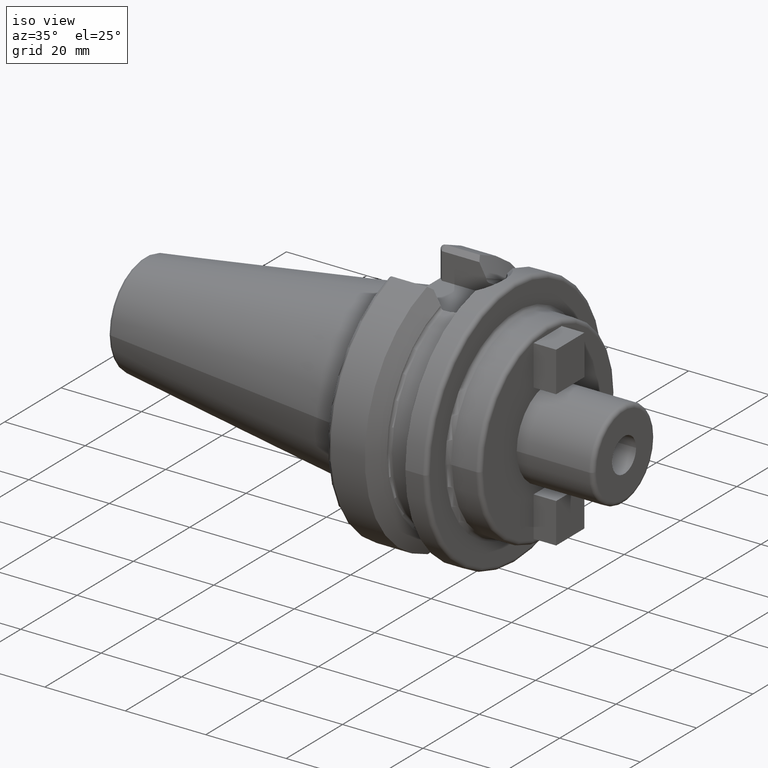
[diagram: clean part render]
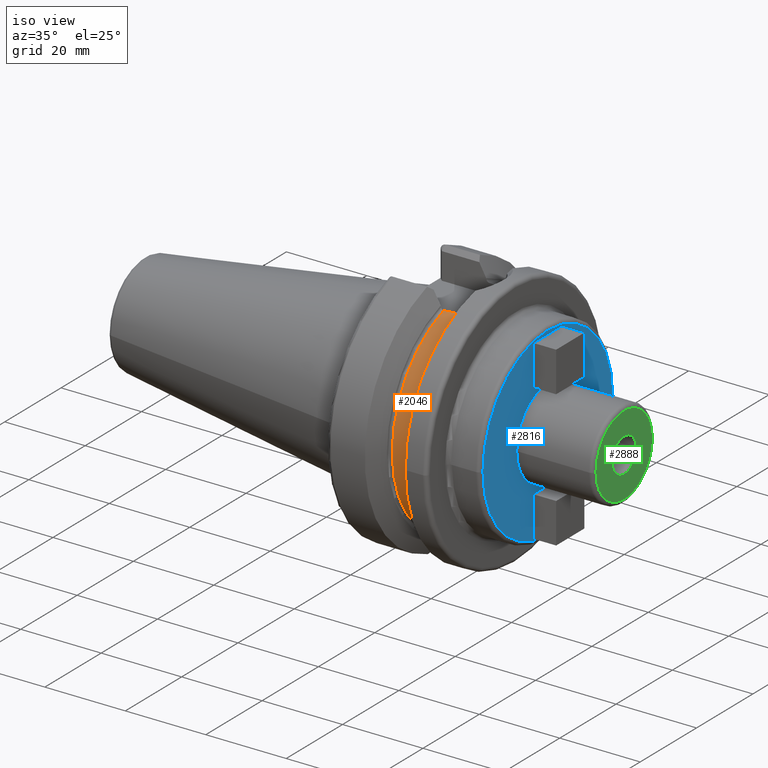
[diagram: same view with three faces highlighted in distinct colors, each labeled with its STEP entity id]
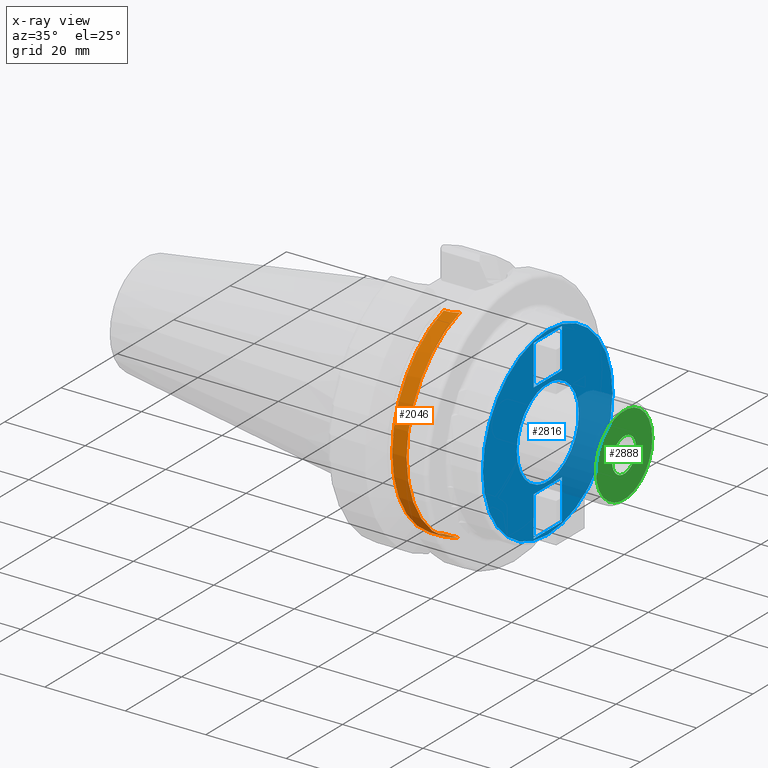
[diagram: x-ray of the same camera — body ghosted, the three highlighted faces saturated]
A machine part, iso view with three faces highlighted in distinct colors.
The next image is the same camera in x-ray (body ghosted, the three faces saturated) — at least one of them is partly hidden behind the body in this view.
Their STEP definitions:

[orange] entity #2046 — the highlighted cylindrical surface (partial cylindrical patch) has radius 26.375 mm, axis along (1, 0, 0).
#308=DIRECTION('',(1.E0,0.E0,0.E0));
#309=VECTOR('',#308,3.425E-1);
#310=CARTESIAN_POINT('',(1.48125E1,-8.095E0,-2.510202382279E1));
#311=LINE('',#310,#309);
#367=CARTESIAN_POINT('',(1.83875E1,-7.421588020768E0,-2.530929979770E1));
#368=CARTESIAN_POINT('',(1.804170386611E1,-7.572200800631E0,-2.526513476699E1));
#369=CARTESIAN_POINT('',(1.734035783411E1,-7.820815511030E0,-2.518941465742E1));
#370=CARTESIAN_POINT('',(1.625266243851E1,-8.045449936191E0,-2.511808739805E1));
#371=CARTESIAN_POINT('',(1.552274116086E1,-8.095E0,-2.510202382279E1));
#372=CARTESIAN_POINT('',(1.5155E1,-8.095E0,-2.510202382279E1));
#374=CARTESIAN_POINT('',(1.48125E1,0.E0,0.E0));
#375=DIRECTION('',(-1.E0,0.E0,0.E0));
#376=DIRECTION('',(0.E0,-3.069194312796E-1,-9.517355003902E-1));
#377=AXIS2_PLACEMENT_3D('',#374,#375,#376);
#379=CARTESIAN_POINT('',(1.5155E1,-8.095E0,2.510202382279E1));
#380=CARTESIAN_POINT('',(1.552274116086E1,-8.095E0,2.510202382279E1));
#381=CARTESIAN_POINT('',(1.625266243851E1,-8.045449936191E0,2.511808739805E1));
#382=CARTESIAN_POINT('',(1.734035783411E1,-7.820815511030E0,2.518941465742E1));
#383=CARTESIAN_POINT('',(1.804170386611E1,-7.572200800631E0,2.526513476699E1));
#384=CARTESIAN_POINT('',(1.83875E1,-7.421588020768E0,2.530929979770E1));
#465=CARTESIAN_POINT('',(1.83875E1,0.E0,0.E0));
#466=DIRECTION('',(-1.E0,0.E0,0.E0));
#467=DIRECTION('',(0.E0,-2.813872235362E-1,-9.595943051262E-1));
#468=AXIS2_PLACEMENT_3D('',#465,#466,#467);
#551=DIRECTION('',(1.E0,0.E0,0.E0));
#552=VECTOR('',#551,3.425E-1);
#553=CARTESIAN_POINT('',(1.48125E1,-8.095E0,2.510202382279E1));
#554=LINE('',#553,#552);
#1320=CARTESIAN_POINT('',(1.48125E1,-8.095E0,-2.510202382279E1));
#1321=CARTESIAN_POINT('',(1.48125E1,-8.095E0,2.510202382279E1));
#1322=VERTEX_POINT('',#1320);
#1323=VERTEX_POINT('',#1321);
#1332=CARTESIAN_POINT('',(1.83875E1,-7.421588020768E0,-2.530929979770E1));
#1333=CARTESIAN_POINT('',(1.83875E1,-7.421588020768E0,2.530929979770E1));
#1334=VERTEX_POINT('',#1332);
#1335=VERTEX_POINT('',#1333);
#1461=CARTESIAN_POINT('',(1.5155E1,-8.095E0,2.510202382279E1));
#1462=VERTEX_POINT('',#1461);
#1469=CARTESIAN_POINT('',(1.5155E1,-8.095E0,-2.510202382279E1));
#1470=VERTEX_POINT('',#1469);
#2029=CARTESIAN_POINT('',(1.106999478413E1,0.E0,0.E0));
#2030=DIRECTION('',(1.E0,0.E0,0.E0));
#2031=DIRECTION('',(0.E0,-1.E0,0.E0));
#2032=AXIS2_PLACEMENT_3D('',#2029,#2030,#2031);
#2033=CYLINDRICAL_SURFACE('',#2032,2.6375E1);
#2035=ORIENTED_EDGE('',*,*,#2034,.T.);
#2036=ORIENTED_EDGE('',*,*,#1968,.F.);
#2037=ORIENTED_EDGE('',*,*,#2002,.T.);
#2039=ORIENTED_EDGE('',*,*,#2038,.T.);
#2041=ORIENTED_EDGE('',*,*,#2040,.T.);
#2043=ORIENTED_EDGE('',*,*,#2042,.F.);
#2044=EDGE_LOOP('',(#2035,#2036,#2037,#2039,#2041,#2043));
#2045=FACE_OUTER_BOUND('',#2044,.F.);
#2046=ADVANCED_FACE('',(#2045),#2033,.T.);
#373=B_SPLINE_CURVE_WITH_KNOTS('',3,(#367,#368,#369,#370,#371,#372),
.UNSPECIFIED.,.F.,.F.,(4,1,1,4),(0.E0,3.333333333333E-1,6.666666666667E-1,1.E0),
.UNSPECIFIED.);
#378=CIRCLE('',#377,2.6375E1);
#385=B_SPLINE_CURVE_WITH_KNOTS('',3,(#379,#380,#381,#382,#383,#384),
.UNSPECIFIED.,.F.,.F.,(4,1,1,4),(0.E0,3.333333333333E-1,6.666666666667E-1,1.E0),
.UNSPECIFIED.);
#469=CIRCLE('',#468,2.6375E1);
#1968=EDGE_CURVE('',#1322,#1470,#311,.T.);
#2002=EDGE_CURVE('',#1322,#1323,#378,.T.);
#2034=EDGE_CURVE('',#1334,#1470,#373,.T.);
#2038=EDGE_CURVE('',#1323,#1462,#554,.T.);
#2040=EDGE_CURVE('',#1462,#1335,#385,.T.);
#2042=EDGE_CURVE('',#1334,#1335,#469,.T.);

[blue] entity #2816 — the highlighted planar face has unit normal (1, 0, 0).
#894=CARTESIAN_POINT('',(3.5E1,0.E0,0.E0));
#895=DIRECTION('',(1.E0,0.E0,0.E0));
#896=DIRECTION('',(0.E0,1.E0,0.E0));
#897=AXIS2_PLACEMENT_3D('',#894,#895,#896);
#899=CARTESIAN_POINT('',(3.5E1,0.E0,0.E0));
#900=DIRECTION('',(-1.E0,0.E0,0.E0));
#901=DIRECTION('',(0.E0,1.E0,0.E0));
#902=AXIS2_PLACEMENT_3D('',#899,#900,#901);
#904=CARTESIAN_POINT('',(3.5E1,0.E0,0.E0));
#905=DIRECTION('',(-1.E0,0.E0,0.E0));
#906=DIRECTION('',(0.E0,1.E0,0.E0));
#907=AXIS2_PLACEMENT_3D('',#904,#905,#906);
#909=CARTESIAN_POINT('',(3.5E1,0.E0,0.E0));
#910=DIRECTION('',(-1.E0,0.E0,0.E0));
#911=DIRECTION('',(0.E0,-1.E0,0.E0));
#912=AXIS2_PLACEMENT_3D('',#909,#910,#911);
#914=DIRECTION('',(0.E0,-1.E0,0.E0));
#915=VECTOR('',#914,1.E1);
#916=CARTESIAN_POINT('',(3.5E1,5.E0,-1.2E1));
#917=LINE('',#916,#915);
#918=DIRECTION('',(0.E0,0.E0,-1.E0));
#919=VECTOR('',#918,1.E1);
#920=CARTESIAN_POINT('',(3.5E1,-5.E0,-1.2E1));
#921=LINE('',#920,#919);
#922=DIRECTION('',(0.E0,1.E0,0.E0));
#923=VECTOR('',#922,1.E1);
#924=CARTESIAN_POINT('',(3.5E1,-5.E0,-2.2E1));
#925=LINE('',#924,#923);
#926=DIRECTION('',(0.E0,0.E0,1.E0));
#927=VECTOR('',#926,1.E1);
#928=CARTESIAN_POINT('',(3.5E1,5.E0,-2.2E1));
#929=LINE('',#928,#927);
#930=DIRECTION('',(0.E0,0.E0,1.E0));
#931=VECTOR('',#930,1.E1);
#932=CARTESIAN_POINT('',(3.5E1,5.E0,1.2E1));
#933=LINE('',#932,#931);
#934=DIRECTION('',(0.E0,-1.E0,0.E0));
#935=VECTOR('',#934,1.E1);
#936=CARTESIAN_POINT('',(3.5E1,5.E0,2.2E1));
#937=LINE('',#936,#935);
#938=DIRECTION('',(0.E0,0.E0,-1.E0));
#939=VECTOR('',#938,1.E1);
#940=CARTESIAN_POINT('',(3.5E1,-5.E0,2.2E1));
#941=LINE('',#940,#939);
#942=DIRECTION('',(0.E0,1.E0,0.E0));
#943=VECTOR('',#942,1.E1);
#944=CARTESIAN_POINT('',(3.5E1,-5.E0,1.2E1));
#945=LINE('',#944,#943);
#1539=CARTESIAN_POINT('',(3.5E1,1.1E1,0.E0));
#1540=CARTESIAN_POINT('',(3.5E1,-1.1E1,0.E0));
#1541=VERTEX_POINT('',#1539);
#1542=VERTEX_POINT('',#1540);
#1543=CARTESIAN_POINT('',(3.5E1,2.3E1,0.E0));
#1544=CARTESIAN_POINT('',(3.5E1,-2.3E1,0.E0));
#1545=VERTEX_POINT('',#1543);
#1546=VERTEX_POINT('',#1544);
#1571=CARTESIAN_POINT('',(3.5E1,5.E0,-1.2E1));
#1572=CARTESIAN_POINT('',(3.5E1,-5.E0,-1.2E1));
#1573=VERTEX_POINT('',#1571);
#1574=VERTEX_POINT('',#1572);
#1575=CARTESIAN_POINT('',(3.5E1,-5.E0,-2.2E1));
#1576=VERTEX_POINT('',#1575);
#1577=CARTESIAN_POINT('',(3.5E1,5.E0,-2.2E1));
#1578=VERTEX_POINT('',#1577);
#1579=CARTESIAN_POINT('',(3.5E1,5.E0,1.2E1));
#1580=CARTESIAN_POINT('',(3.5E1,5.E0,2.2E1));
#1581=VERTEX_POINT('',#1579);
#1582=VERTEX_POINT('',#1580);
#1583=CARTESIAN_POINT('',(3.5E1,-5.E0,2.2E1));
#1584=VERTEX_POINT('',#1583);
#1585=CARTESIAN_POINT('',(3.5E1,-5.E0,1.2E1));
#1586=VERTEX_POINT('',#1585);
#2781=CARTESIAN_POINT('',(3.5E1,0.E0,0.E0));
#2782=DIRECTION('',(1.E0,0.E0,0.E0));
#2783=DIRECTION('',(0.E0,-1.E0,0.E0));
#2784=AXIS2_PLACEMENT_3D('',#2781,#2782,#2783);
#2785=PLANE('',#2784);
#2786=ORIENTED_EDGE('',*,*,#2761,.T.);
#2787=ORIENTED_EDGE('',*,*,#2775,.T.);
#2788=EDGE_LOOP('',(#2786,#2787));
#2789=FACE_OUTER_BOUND('',#2788,.F.);
#2791=ORIENTED_EDGE('',*,*,#2790,.T.);
#2793=ORIENTED_EDGE('',*,*,#2792,.F.);
#2794=EDGE_LOOP('',(#2791,#2793));
#2795=FACE_BOUND('',#2794,.F.);
#2797=ORIENTED_EDGE('',*,*,#2796,.T.);
#2799=ORIENTED_EDGE('',*,*,#2798,.T.);
#2801=ORIENTED_EDGE('',*,*,#2800,.T.);
#2803=ORIENTED_EDGE('',*,*,#2802,.T.);
#2804=EDGE_LOOP('',(#2797,#2799,#2801,#2803));
#2805=FACE_BOUND('',#2804,.F.);
#2807=ORIENTED_EDGE('',*,*,#2806,.T.);
#2809=ORIENTED_EDGE('',*,*,#2808,.T.);
#2811=ORIENTED_EDGE('',*,*,#2810,.T.);
#2813=ORIENTED_EDGE('',*,*,#2812,.T.);
#2814=EDGE_LOOP('',(#2807,#2809,#2811,#2813));
#2815=FACE_BOUND('',#2814,.F.);
#2816=ADVANCED_FACE('',(#2789,#2795,#2805,#2815),#2785,.T.);
#898=CIRCLE('',#897,1.1E1);
#903=CIRCLE('',#902,1.1E1);
#908=CIRCLE('',#907,2.3E1);
#913=CIRCLE('',#912,2.3E1);
#2761=EDGE_CURVE('',#1545,#1546,#908,.T.);
#2775=EDGE_CURVE('',#1546,#1545,#913,.T.);
#2790=EDGE_CURVE('',#1541,#1542,#898,.T.);
#2792=EDGE_CURVE('',#1541,#1542,#903,.T.);
#2796=EDGE_CURVE('',#1573,#1574,#917,.T.);
#2798=EDGE_CURVE('',#1574,#1576,#921,.T.);
#2800=EDGE_CURVE('',#1576,#1578,#925,.T.);
#2802=EDGE_CURVE('',#1578,#1573,#929,.T.);
#2806=EDGE_CURVE('',#1581,#1582,#933,.T.);
#2808=EDGE_CURVE('',#1582,#1584,#937,.T.);
#2810=EDGE_CURVE('',#1584,#1586,#941,.T.);
#2812=EDGE_CURVE('',#1586,#1581,#945,.T.);

[green] entity #2888 — the highlighted planar face has unit normal (1, 0, 0).
#974=CARTESIAN_POINT('',(5.4E1,0.E0,0.E0));
#975=DIRECTION('',(-1.E0,0.E0,0.E0));
#976=DIRECTION('',(0.E0,1.E0,0.E0));
#977=AXIS2_PLACEMENT_3D('',#974,#975,#976);
#979=CARTESIAN_POINT('',(5.4E1,0.E0,0.E0));
#980=DIRECTION('',(-1.E0,0.E0,0.E0));
#981=DIRECTION('',(0.E0,-1.E0,0.E0));
#982=AXIS2_PLACEMENT_3D('',#979,#980,#981);
#984=CARTESIAN_POINT('',(5.4E1,0.E0,0.E0));
#985=DIRECTION('',(1.E0,0.E0,0.E0));
#986=DIRECTION('',(0.E0,-1.E0,0.E0));
#987=AXIS2_PLACEMENT_3D('',#984,#985,#986);
#989=CARTESIAN_POINT('',(5.4E1,0.E0,0.E0));
#990=DIRECTION('',(1.E0,0.E0,0.E0));
#991=DIRECTION('',(0.E0,1.E0,0.E0));
#992=AXIS2_PLACEMENT_3D('',#989,#990,#991);
#1551=CARTESIAN_POINT('',(5.4E1,1.E1,0.E0));
#1552=CARTESIAN_POINT('',(5.4E1,-1.E1,0.E0));
#1553=VERTEX_POINT('',#1551);
#1554=VERTEX_POINT('',#1552);
#1593=CARTESIAN_POINT('',(5.4E1,-4.25E0,0.E0));
#1594=CARTESIAN_POINT('',(5.4E1,4.25E0,0.E0));
#1595=VERTEX_POINT('',#1593);
#1596=VERTEX_POINT('',#1594);
#2873=CARTESIAN_POINT('',(5.4E1,0.E0,0.E0));
#2874=DIRECTION('',(1.E0,0.E0,0.E0));
#2875=DIRECTION('',(0.E0,-1.E0,0.E0));
#2876=AXIS2_PLACEMENT_3D('',#2873,#2874,#2875);
#2877=PLANE('',#2876);
#2878=ORIENTED_EDGE('',*,*,#2855,.T.);
#2879=ORIENTED_EDGE('',*,*,#2840,.T.);
#2880=EDGE_LOOP('',(#2878,#2879));
#2881=FACE_OUTER_BOUND('',#2880,.F.);
#2883=ORIENTED_EDGE('',*,*,#2882,.T.);
#2885=ORIENTED_EDGE('',*,*,#2884,.T.);
#2886=EDGE_LOOP('',(#2883,#2885));
#2887=FACE_BOUND('',#2886,.F.);
#2888=ADVANCED_FACE('',(#2881,#2887),#2877,.T.);
#978=CIRCLE('',#977,1.E1);
#983=CIRCLE('',#982,1.E1);
#988=CIRCLE('',#987,4.25E0);
#993=CIRCLE('',#992,4.25E0);
#2840=EDGE_CURVE('',#1554,#1553,#983,.T.);
#2855=EDGE_CURVE('',#1553,#1554,#978,.T.);
#2882=EDGE_CURVE('',#1595,#1596,#988,.T.);
#2884=EDGE_CURVE('',#1596,#1595,#993,.T.);